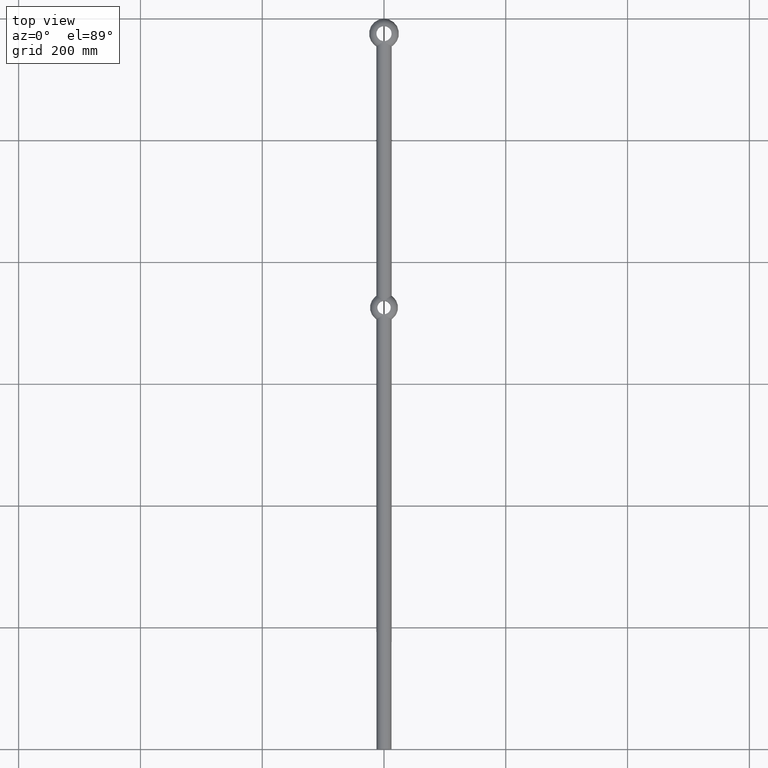
[diagram: clean part render]
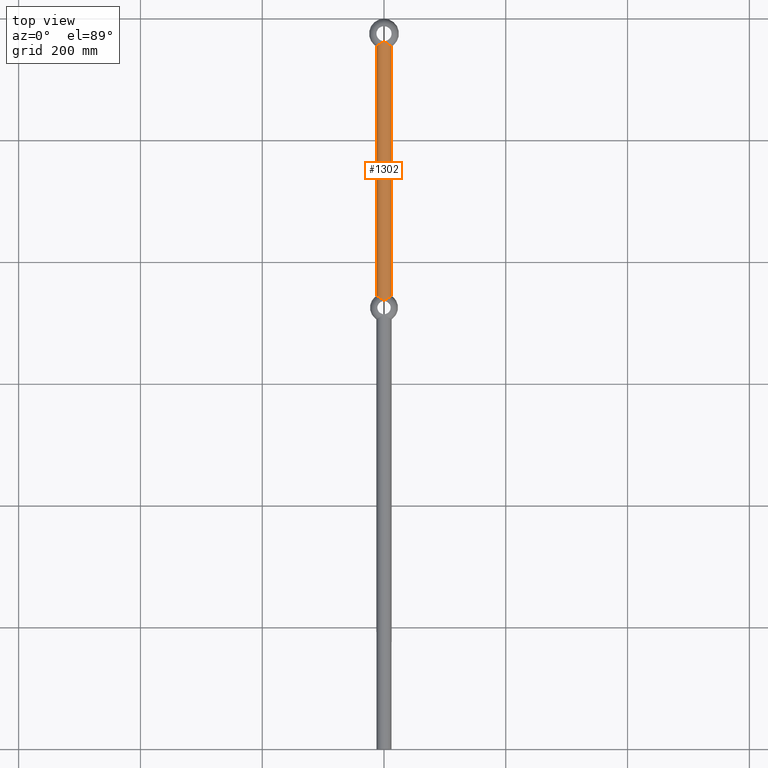
[diagram: same view with one face highlighted and labeled with its STEP entity id]
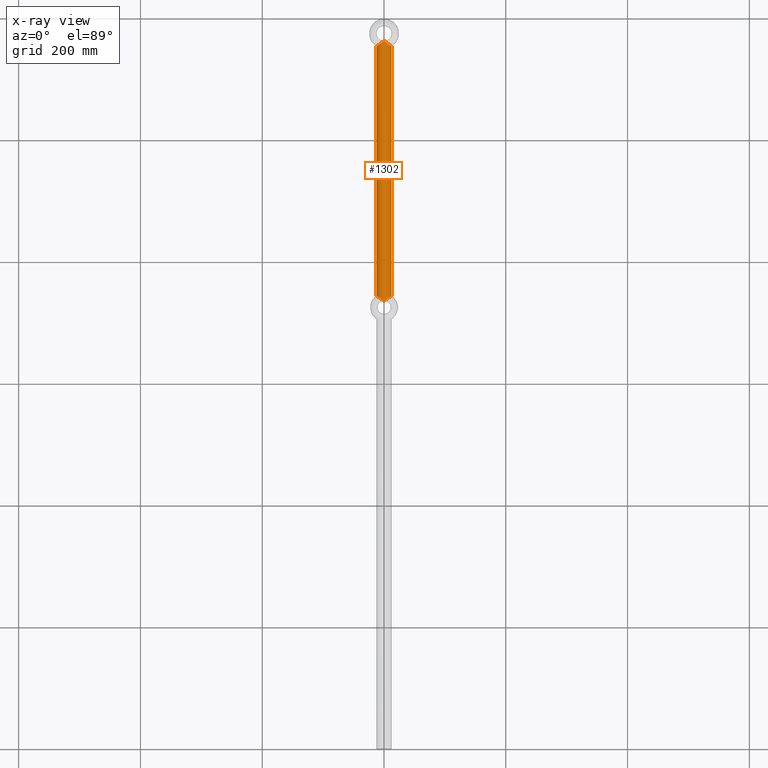
[diagram: x-ray of the same camera — body ghosted, the highlighted face saturated]
A machine part, top view. The second image highlights one B-rep face of the part: STEP entity #1302.
The next image is the same camera in x-ray: the body ghosted, the highlighted face saturated — about 0% of this face is hidden behind the body in this view.
In plain terms, the highlighted cylindrical surface (bore or boss wall) has radius 12.5 mm, axis along (-0, -1, -0).
Its self-contained STEP definition (entity closure, byte-faithful):
#5 = CARTESIAN_POINT ( 'NONE',  ( -12.47995561942790665, 744.7958670994731847, 0.8410071849056679483 ) ) ;
#42 = CARTESIAN_POINT ( 'NONE',  ( 0.8024486252889830862, 736.9064128386888797, 12.47560074127705043 ) ) ;
#81 = CARTESIAN_POINT ( 'NONE',  ( 0.4294464641169787877, 736.6433420418944706, 12.49303151539081291 ) ) ;
#124 = CARTESIAN_POINT ( 'NONE',  ( 9.741812696498756807, 1156.058906779740255, 7.844166483774707821 ) ) ;
#205 = CARTESIAN_POINT ( 'NONE',  ( 12.37172086303674234, 1154.501728961491835, 1.843034531111580776 ) ) ;
#241 = CARTESIAN_POINT ( 'NONE',  ( -4.731142428018757506, 1159.431869780404668, -11.57623707261711665 ) ) ;
#249 = CARTESIAN_POINT ( 'NONE',  ( -2.557229577531917819, 738.3473711947698348, 12.24081682425396700 ) ) ;
#264 = CARTESIAN_POINT ( 'NONE',  ( 4.993155549150756656, 740.1849250338199226, -11.46589208027404716 ) ) ;
#273 = CARTESIAN_POINT ( 'NONE',  ( 6.708808101363580967, 741.3585746226846140, 10.55452179782514754 ) ) ;
#281 = CARTESIAN_POINT ( 'NONE',  ( 11.53373901309380045, 1154.985065385755433, -4.839256075637949905 ) ) ;
#283 = CARTESIAN_POINT ( 'NONE',  ( 8.880463941004892854E-15, 1163.000000000000000, -12.49999999999999645 ) ) ;
#317 = CARTESIAN_POINT ( 'NONE',  ( 9.492293304708098844, 1156.211287078291207, -8.178129405757681880 ) ) ;
#319 = CARTESIAN_POINT ( 'NONE',  ( -9.605050525384177362, 1156.143178478085701, -8.010458309899709306 ) ) ;
#341 = CARTESIAN_POINT ( 'NONE',  ( 0.2257803073741623812, 736.5392413335755464, -12.49837541714896183 ) ) ;
#360 = CARTESIAN_POINT ( 'NONE',  ( -12.27872222346882758, 1154.554790811850580, 2.384085475157659229 ) ) ;
#429 = CARTESIAN_POINT ( 'NONE',  ( 6.019542393650459289, 1158.502195063073714, -10.96212501040120557 ) ) ;
#480 = CARTESIAN_POINT ( 'NONE',  ( -1.507698863636163011, 737.4847928416778586, 12.41378416404361040 ) ) ;
#554 = CARTESIAN_POINT ( 'NONE',  ( -9.432808527848948188, 1156.249959991580909, 8.212592780755011646 ) ) ;
#727 = CARTESIAN_POINT ( 'NONE',  ( -11.19026318910806950, 744.0824925467593403, 5.588062444339297663 ) ) ;
#745 = CARTESIAN_POINT ( 'NONE',  ( 12.37387588079094769, 744.7381646224420138, 1.827907482643321924 ) ) ;
#746 = B_SPLINE_CURVE_WITH_KNOTS ( 'NONE', 3,
 ( #2854, #2813, #1020, #2007, #7209, #1927, #3718, #5546, #8109, #8988, #4680, #3642, #9876, #4538, #5378, #6394, #7253, #9034, #10681, #10762, #124, #9913, #8065, #5464, #8194, #10851, #6434, #4642, #205, #6283, #1970, #986, #10806, #1882, #1060, #1104, #281, #8153, #1147, #7297, #7343, #317, #6592, #10890, #5705, #429, #6556, #10960, #8227, #8264, #10024, #8298, #2974, #4755, #8370, #11040, #2086, #4716, #2203, #3084 ),
 .UNSPECIFIED., .F., .F.,
 ( 4, 2, 2, 2, 2, 2, 2, 2, 2, 2, 2, 2, 2, 2, 2, 2, 2, 2, 2, 2, 2, 2, 2, 2, 2, 2, 2, 2, 2, 4 ),
 ( 0.03202140945159761415, 0.03235271011112006434, 0.03268401077064251453, 0.03334661208968740798, 0.03467181472777720180, 0.03732222000395638700, 0.03997262528013557220, 0.04129782791822517174, 0.04262303055631476434, 0.04394823319440435694, 0.04527343583249394260, 0.04792384110867289881, 0.04924904374676238039, 0.05057424638485185503, 0.05189944902294132967, 0.05322465166103081124, 0.05587505693720977440, 0.05720025957529924904, 0.05852546221338872368, 0.05985066485147820525, 0.06117586748956767295, 0.06382627276574662223, 0.06647667804192558538, 0.06780188068001490043, 0.06912708331810421547, 0.07177748859428284556, 0.07310269123237236877, 0.07376529255141732466, 0.07409659321093980955, 0.07442789387046228056 ),
 .UNSPECIFIED. ) ;
#757 = CARTESIAN_POINT ( 'NONE',  ( -0.5205917527434354986, 736.7045280614040621, -12.48949458828022507 ) ) ;
#778 = CARTESIAN_POINT ( 'NONE',  ( 10.27802545708300030, 743.5611275148163486, -7.127143769692401598 ) ) ;
#792 = CARTESIAN_POINT ( 'NONE',  ( -2.534917174997514344, 738.3294372169571034, -12.24535942220528106 ) ) ;
#808 = CARTESIAN_POINT ( 'NONE',  ( 7.040402423110196928, 741.5755814852482217, -10.33659000288436225 ) ) ;
#861 = CARTESIAN_POINT ( 'NONE',  ( -3.928113844949173483, 739.4087640740513052, -11.87248725931876869 ) ) ;
#880 = ORIENTED_EDGE ( 'NONE', *, *, #8688, .F. ) ;
#986 = CARTESIAN_POINT ( 'NONE',  ( 12.50150172246010172, 1154.427838724629510, -0.8991106012709723094 ) ) ;
#1020 = CARTESIAN_POINT ( 'NONE',  ( 0.2272175940879887224, 1162.959931753192450, 12.49834770302886255 ) ) ;
#1060 = CARTESIAN_POINT ( 'NONE',  ( 11.98712544553462678, 1154.722144331914251, -3.572331446427152279 ) ) ;
#1104 = CARTESIAN_POINT ( 'NONE',  ( 11.69904066700985545, 1154.888894740239948, -4.425514194053121741 ) ) ;
#1105 = CARTESIAN_POINT ( 'NONE',  ( -11.03761186933793681, 1155.276672321272599, -5.883080856773882594 ) ) ;
#1110 = EDGE_CURVE ( 'NONE', #1249, #4558, #6693, .T. ) ;
#1133 = CARTESIAN_POINT ( 'NONE',  ( 0.4293258606162899671, 736.6432109792388019, -12.49303982706361360 ) ) ;
#1147 = CARTESIAN_POINT ( 'NONE',  ( 10.95746071849889880, 1155.324165713179127, -6.031321562881649889 ) ) ;
#1148 = CARTESIAN_POINT ( 'NONE',  ( -0.4386104404978987681, 1162.850176502676504, -12.49272898594789361 ) ) ;
#1171 = CARTESIAN_POINT ( 'NONE',  ( 1.847716406156441504, 737.7700115897478099, -12.36770480460317323 ) ) ;
#1184 = CARTESIAN_POINT ( 'NONE',  ( -10.60158830114425044, 1155.536555519288413, -6.636704124678935557 ) ) ;
#1249 = VERTEX_POINT ( 'NONE', #10298 ) ;
#1270 = CARTESIAN_POINT ( 'NONE',  ( -0.9792312810445380489, 737.0512473125231736, 12.46284094345833005 ) ) ;
#1298 = CARTESIAN_POINT ( 'NONE',  ( -7.958576027326191848, 1157.189319294726829, 9.647591643355928781 ) ) ;
#1302 = ADVANCED_FACE ( 'NONE', ( #11238, #4207 ), #9287, .T. ) ;
#1416 = CARTESIAN_POINT ( 'NONE',  ( -5.657678900261871036, 1158.753665892238587, 11.17355872449560295 ) ) ;
#1453 = CARTESIAN_POINT ( 'NONE',  ( -1.849015386980135123, 1161.714107154593876, 12.36748556885441808 ) ) ;
#1492 = CARTESIAN_POINT ( 'NONE',  ( 0.000000000000000000, 1200.000999999999976, 0.000000000000000000 ) ) ;
#1513 = ORIENTED_EDGE ( 'NONE', *, *, #1110, .F. ) ;
#1529 = CARTESIAN_POINT ( 'NONE',  ( 9.762441973810437545, 743.2595562501493305, 7.818480496469507379 ) ) ;
#1586 = CARTESIAN_POINT ( 'NONE',  ( -4.966823643387684228, 740.1661572749329707, -11.47714444666488198 ) ) ;
#1613 = CARTESIAN_POINT ( 'NONE',  ( -10.30210195780365190, 743.5750803607530770, 7.092272761083358468 ) ) ;
#1632 = CARTESIAN_POINT ( 'NONE',  ( 12.40302239525808048, 744.7543070319915159, -1.796985188333605432 ) ) ;
#1648 = CARTESIAN_POINT ( 'NONE',  ( -12.31331935275635914, 744.7051978848386398, 2.199235538328587314 ) ) ;
#1670 = CARTESIAN_POINT ( 'NONE',  ( 11.69642469442950272, 744.3656566183233281, 4.432438193572549423 ) ) ;
#1687 = CARTESIAN_POINT ( 'NONE',  ( -7.011332891259194788, 741.5615610124851855, -10.37816118853220360 ) ) ;
#1707 = CARTESIAN_POINT ( 'NONE',  ( 6.708284712162662089, 741.3582090284385231, -10.55476213181084866 ) ) ;
#1722 = CARTESIAN_POINT ( 'NONE',  ( -9.451729900293774023, 743.0755440827800840, -8.191018424397519482 ) ) ;
#1744 = CARTESIAN_POINT ( 'NONE',  ( 11.52996870935835538, 744.2730817818186324, 4.848021846056022710 ) ) ;
#1882 = CARTESIAN_POINT ( 'NONE',  ( 12.11003898833786252, 1154.651493940571527, -3.130938498078900789 ) ) ;
#1927 = CARTESIAN_POINT ( 'NONE',  ( 0.8044365197665725997, 1162.588885622717953, 12.47547712260048236 ) ) ;
#1970 = CARTESIAN_POINT ( 'NONE',  ( 12.49922357586756227, 1154.429133912322413, 0.4805166989544158440 ) ) ;
#2000 = CARTESIAN_POINT ( 'NONE',  ( -0.1152547960527744580, 736.4999999999997726, 12.49999999999999467 ) ) ;
#2007 = CARTESIAN_POINT ( 'NONE',  ( 0.4303530062953792035, 1162.855194788577819, 12.49300281881191488 ) ) ;
#2049 = CARTESIAN_POINT ( 'NONE',  ( -2.955067884476879847, 1160.797348275686318, -12.16722525263383403 ) ) ;
#2073 = CARTESIAN_POINT ( 'NONE',  ( 0.000000000000000000, 736.4999999999998863, -12.50000000000005684 ) ) ;
#2086 = CARTESIAN_POINT ( 'NONE',  ( 0.4314125403391537716, 1162.854595730679193, -12.49297105151969589 ) ) ;
#2087 = CARTESIAN_POINT ( 'NONE',  ( -11.95267396681082239, 1154.742011316189291, 3.685177670128298555 ) ) ;
#2203 = CARTESIAN_POINT ( 'NONE',  ( 0.1157681101594828788, 1163.000000000000227, -12.49999999999999645 ) ) ;
#2206 = CARTESIAN_POINT ( 'NONE',  ( -0.8081723421149747955, 1162.585723609184242, 12.47520629286761107 ) ) ;
#2278 = CARTESIAN_POINT ( 'NONE',  ( -6.998879003327066251, 1157.827158300724705, 10.36456779923444671 ) ) ;
#2296 = CARTESIAN_POINT ( 'NONE',  ( 0.000000000000000000, 736.4999999999998863, 12.50000000000000000 ) ) ;
#2319 = CARTESIAN_POINT ( 'NONE',  ( -0.4382095520077913808, 1162.850364957426109, 12.49273816195305464 ) ) ;
#2363 = CARTESIAN_POINT ( 'NONE',  ( -8.568065794023176807, 1156.795233683623792, 9.110609499312998238 ) ) ;
#2391 = VERTEX_POINT ( 'NONE', #10110 ) ;
#2432 = CARTESIAN_POINT ( 'NONE',  ( 10.97600856660879032, 743.9621490416632241, 6.045759917513032100 ) ) ;
#2509 = CARTESIAN_POINT ( 'NONE',  ( -7.730603352725620603, 742.0217790529862896, 9.857324035085536451 ) ) ;
#2529 = CARTESIAN_POINT ( 'NONE',  ( 11.99125767563413447, 744.5287281522613512, -3.558244624495165098 ) ) ;
#2544 = CARTESIAN_POINT ( 'NONE',  ( -7.078995312502345705, 741.6056677681957581, 10.33291561493675204 ) ) ;
#2581 = CARTESIAN_POINT ( 'NONE',  ( -2.884261699599813600, 738.6073877942828858, -12.16802773064221199 ) ) ;
#2615 = CARTESIAN_POINT ( 'NONE',  ( -11.99119391736396167, 744.5288409168645103, -3.643253763956523006 ) ) ;
#2686 = CARTESIAN_POINT ( 'NONE',  ( 0.9785569969064356055, 737.0507051388514128, 12.46288831367186312 ) ) ;
#2724 = CARTESIAN_POINT ( 'NONE',  ( 4.998020626457629234, 740.1948541899330394, 11.48125499709244934 ) ) ;
#2813 = CARTESIAN_POINT ( 'NONE',  ( 0.1155599342855573308, 1162.999999999999773, 12.49999999999999645 ) ) ;
#2854 = CARTESIAN_POINT ( 'NONE',  ( 0.000000000000000000, 1163.000000000000000, 12.50000000000000000 ) ) ;
#2898 = CARTESIAN_POINT ( 'NONE',  ( -11.77563964931360196, 1154.843537278405165, -4.284502934002159868 ) ) ;
#2935 = CARTESIAN_POINT ( 'NONE',  ( -9.045410078020196920, 1156.493013897204946, -8.629818932758691830 ) ) ;
#2974 = CARTESIAN_POINT ( 'NONE',  ( 1.506039918336706140, 1162.006465950848906, -12.41391941290054923 ) ) ;
#3084 = CARTESIAN_POINT ( 'NONE',  ( 8.880463941004892854E-15, 1163.000000000000000, -12.49999999999999645 ) ) ;
#3166 = CARTESIAN_POINT ( 'NONE',  ( -0.1178529286420554600, 1163.000000000000000, 12.49999999999999467 ) ) ;
#3204 = CARTESIAN_POINT ( 'NONE',  ( 0.000000000000000000, 1163.000000000000000, 12.50000000000000000 ) ) ;
#3330 = CARTESIAN_POINT ( 'NONE',  ( -0.8023543324032392787, 736.9063383088054024, 12.47560670440293862 ) ) ;
#3368 = CARTESIAN_POINT ( 'NONE',  ( -10.23772948521794390, 743.5377421857227773, -7.184772581742488562 ) ) ;
#3406 = CARTESIAN_POINT ( 'NONE',  ( -0.7966968753646839208, 736.9019606752075333, -12.47594635543159036 ) ) ;
#3443 = CARTESIAN_POINT ( 'NONE',  ( -5.713693799777669113, 740.6934330686926842, 11.14607656990637530 ) ) ;
#3478 = CARTESIAN_POINT ( 'NONE',  ( 0.000000000000000000, 736.4999999999998863, -12.50000000000005684 ) ) ;
#3515 = CARTESIAN_POINT ( 'NONE',  ( -12.52430715453253995, 744.8199161523782550, -0.06328527934189859261 ) ) ;
#3595 = CARTESIAN_POINT ( 'NONE',  ( 2.904822146621599099, 738.6302154032530325, 12.17863896772043475 ) ) ;
#3635 = CARTESIAN_POINT ( 'NONE',  ( 0.2269259744705618420, 736.5397575061633688, 12.49835050365452460 ) ) ;
#3642 = CARTESIAN_POINT ( 'NONE',  ( 4.983886557735218048, 1159.239508696245366, 11.48713772720912552 ) ) ;
#3718 = CARTESIAN_POINT ( 'NONE',  ( 0.9806514467642942767, 1162.442932201474378, 12.46272386010823396 ) ) ;
#3750 = CARTESIAN_POINT ( 'NONE',  ( 0.1150500946764529825, 736.5000000000000000, -12.49999999999999467 ) ) ;
#3765 = EDGE_CURVE ( 'NONE', #5993, #2391, #8034, .T. ) ;
#3807 = CARTESIAN_POINT ( 'NONE',  ( -12.32729401055246043, 1154.527042829828133, -2.119211869401065762 ) ) ;
#3847 = CARTESIAN_POINT ( 'NONE',  ( -11.23901431182061472, 1155.157887937828036, -5.488872464740022217 ) ) ;
#3890 = CARTESIAN_POINT ( 'NONE',  ( -5.084238458179984654, 1159.172088766700881, -11.42596528336317796 ) ) ;
#3924 = CARTESIAN_POINT ( 'NONE',  ( -0.2322228266742295266, 1162.958064276291680, -12.49826904789730797 ) ) ;
#3999 = CARTESIAN_POINT ( 'NONE',  ( -1.505383124623764335, 1162.006988979432208, 12.41395216879775987 ) ) ;
#4207 = FACE_OUTER_BOUND ( 'NONE', #7166, .T. ) ;
#4243 = CARTESIAN_POINT ( 'NONE',  ( 9.487408410985178620, 743.0967800360050433, 8.149611670720185330 ) ) ;
#4333 = CARTESIAN_POINT ( 'NONE',  ( -3.967691627125096598, 739.4383764192382387, 11.85945928234170488 ) ) ;
#4374 = CARTESIAN_POINT ( 'NONE',  ( -0.4267519903334944242, 736.6417396935172519, -12.49311887128995480 ) ) ;
#4414 = CARTESIAN_POINT ( 'NONE',  ( -3.580481630270121229, 739.1466466289529080, -11.98165329579997440 ) ) ;
#4439 = CARTESIAN_POINT ( 'NONE',  ( 0.9778856320896045506, 737.0501696779550684, -12.46292955764252142 ) ) ;
#4538 = CARTESIAN_POINT ( 'NONE',  ( 6.688831187491286023, 1158.037940804464142, 10.56713661843258656 ) ) ;
#4558 = VERTEX_POINT ( 'NONE', #9489 ) ;
#4626 = CARTESIAN_POINT ( 'NONE',  ( 5.689455992794838046, 740.6719669829485611, -11.13680268481744839 ) ) ;
#4642 = CARTESIAN_POINT ( 'NONE',  ( 12.29698462245213442, 1154.544353004213917, 2.288484825779493637 ) ) ;
#4644 = CARTESIAN_POINT ( 'NONE',  ( -0.1180652352392002474, 1162.999999999999773, -12.49999999999999467 ) ) ;
#4680 = CARTESIAN_POINT ( 'NONE',  ( 3.599109681414296880, 1160.287170454613943, 11.99332597261472344 ) ) ;
#4682 = CARTESIAN_POINT ( 'NONE',  ( -0.5348246128124595211, 1162.784431943118079, -12.48891100220807182 ) ) ;
#4692 = CARTESIAN_POINT ( 'NONE',  ( -1.855625550484369279, 737.7765868987245312, 12.36663549448808119 ) ) ;
#4716 = CARTESIAN_POINT ( 'NONE',  ( 0.2271066059443089813, 1162.960041494766756, -12.49835449423673062 ) ) ;
#4717 = CARTESIAN_POINT ( 'NONE',  ( -12.50406632090590975, 1154.426380635217811, -0.3180851000085264113 ) ) ;
#4738 = CARTESIAN_POINT ( 'NONE',  ( 0.5249048309362850384, 736.7074280644153532, -12.48931737868615066 ) ) ;
#4755 = CARTESIAN_POINT ( 'NONE',  ( 0.9810513636973922091, 1162.442595665303088, -12.46268133581978077 ) ) ;
#4756 = CARTESIAN_POINT ( 'NONE',  ( -11.66123808881894242, 1154.910871177153922, 4.523546800152270286 ) ) ;
#4788 = CARTESIAN_POINT ( 'NONE',  ( -6.137559690911519539, 1158.419401062371890, -10.89684226942274137 ) ) ;
#4816 = CARTESIAN_POINT ( 'NONE',  ( 7.694352740720815653, 741.9957773712254721, 9.859450376050524767 ) ) ;
#5123 = CARTESIAN_POINT ( 'NONE',  ( -12.02668419085766516, 744.5483516310783898, 3.525159445673522907 ) ) ;
#5142 = CARTESIAN_POINT ( 'NONE',  ( 12.30010449984499488, 744.6979875084938385, 2.271244982894326636 ) ) ;
#5156 = CARTESIAN_POINT ( 'NONE',  ( -0.9718218901899546847, 737.0452660846010531, -12.46339646899031450 ) ) ;
#5173 = CARTESIAN_POINT ( 'NONE',  ( 11.17283985624537479, 744.0726634769299608, -5.622447391350710255 ) ) ;
#5188 = CARTESIAN_POINT ( 'NONE',  ( -9.723965963156887327, 743.2368508784564938, -7.866164758713469318 ) ) ;
#5210 = CARTESIAN_POINT ( 'NONE',  ( 8.011838589371540920, 742.1958265457650441, -9.603759344570846679 ) ) ;
#5224 = CARTESIAN_POINT ( 'NONE',  ( -7.659349239502534878, 741.9765881413984516, -9.912240180223395924 ) ) ;
#5261 = CARTESIAN_POINT ( 'NONE',  ( -11.70177155459693275, 744.3696278078956539, -4.483861992158157506 ) ) ;
#5378 = CARTESIAN_POINT ( 'NONE',  ( 7.023462997729173374, 1157.810521815760922, 10.34802684562284902 ) ) ;
#5391 = EDGE_CURVE ( 'NONE', #2391, #5993, #10772, .T. ) ;
#5459 = CARTESIAN_POINT ( 'NONE',  ( 7.044493015459355689, 741.5782380681754375, 10.33377684932208318 ) ) ;
#5464 = CARTESIAN_POINT ( 'NONE',  ( 11.51884205909189518, 1154.993762563404971, 4.874502180027026732 ) ) ;
#5510 = CARTESIAN_POINT ( 'NONE',  ( -1.887082837937891666, 1161.682039831933707, -12.36203330768485031 ) ) ;
#5546 = CARTESIAN_POINT ( 'NONE',  ( 1.507973894990702224, 1162.004850685245856, 12.41372900563865400 ) ) ;
#5548 = CARTESIAN_POINT ( 'NONE',  ( -5.786780477367034159, 1158.666305528784960, -11.08671885920360545 ) ) ;
#5588 = CARTESIAN_POINT ( 'NONE',  ( -12.35752091243438322, 1154.509828741360252, 1.936039934526269102 ) ) ;
#5609 = CARTESIAN_POINT ( 'NONE',  ( 3.586962840236200378, 739.1582429869609996, -11.99759133232272568 ) ) ;
#5624 = CARTESIAN_POINT ( 'NONE',  ( -7.823972314098685210, 1157.274220393925816, -9.784978344717188747 ) ) ;
#5660 = CARTESIAN_POINT ( 'NONE',  ( 8.621922785381407550, 742.5740993155377510, 9.059817268813041835 ) ) ;
#5667 = CARTESIAN_POINT ( 'NONE',  ( -9.187955990633698278, 1156.403473658320763, -8.477916854784218970 ) ) ;
#5698 = CARTESIAN_POINT ( 'NONE',  ( 8.010190013107976625, 742.1947695043996873, 9.604930890707498392 ) ) ;
#5705 = CARTESIAN_POINT ( 'NONE',  ( 7.030200089034870814, 1157.801239451877109, -10.36525871353962280 ) ) ;
#5868 = CARTESIAN_POINT ( 'NONE',  ( -10.47646156428927355, 1155.609722961693933, 6.871360244280821483 ) ) ;
#5944 = DIRECTION ( 'NONE',  ( 0.000000000000000000, 0.000000000000000000, -1.000000000000000000 ) ) ;
#5993 = VERTEX_POINT ( 'NONE', #7858 ) ;
#6020 = CARTESIAN_POINT ( 'NONE',  ( -4.621290474073876275, 739.9185094478680185, -11.62022833062250804 ) ) ;
#6041 = CARTESIAN_POINT ( 'NONE',  ( 12.47353922598679432, 744.7923837205754580, 0.9299834708704355357 ) ) ;
#6076 = CARTESIAN_POINT ( 'NONE',  ( 10.52145492150945572, 743.7016222653110162, -6.763175417644527343 ) ) ;
#6090 = CARTESIAN_POINT ( 'NONE',  ( -8.576342415715652479, 742.5453195762787573, -9.096121421353249303 ) ) ;
#6129 = CARTESIAN_POINT ( 'NONE',  ( -0.1144657218276762950, 736.5000000000003411, -12.49999999999999289 ) ) ;
#6203 = CARTESIAN_POINT ( 'NONE',  ( -2.910807654894295382, 738.6283565396634003, 12.16185000539523919 ) ) ;
#6242 = CARTESIAN_POINT ( 'NONE',  ( 0.5240236131630594540, 736.7068181230633854, 12.48935681553868271 ) ) ;
#6283 = CARTESIAN_POINT ( 'NONE',  ( 12.47284813409295445, 1154.444115077345032, 0.9403790829353242398 ) ) ;
#6394 = CARTESIAN_POINT ( 'NONE',  ( 7.672054198601651720, 1157.377281504085431, 9.876754348059931132 ) ) ;
#6395 = CARTESIAN_POINT ( 'NONE',  ( -10.36734483224013914, 1155.677415677447470, -6.996297554265355600 ) ) ;
#6420 = CARTESIAN_POINT ( 'NONE',  ( 1.502764422700490821, 737.4806926567125629, -12.41431403512467924 ) ) ;
#6434 = CARTESIAN_POINT ( 'NONE',  ( 12.10031704363516525, 1154.657079399229588, 3.167857485140323615 ) ) ;
#6459 = CARTESIAN_POINT ( 'NONE',  ( 6.032813801407701071, 740.9064026683831798, -10.95487312003604963 ) ) ;
#6477 = CARTESIAN_POINT ( 'NONE',  ( -9.869081475435400819, 1155.980725363173406, -7.683179626275416396 ) ) ;
#6519 = CARTESIAN_POINT ( 'NONE',  ( -8.523005811350056860, 1156.825048017430618, -9.144368270381264097 ) ) ;
#6556 = CARTESIAN_POINT ( 'NONE',  ( 5.677013985379767647, 1158.744385866947823, -11.14311442150376763 ) ) ;
#6558 = CARTESIAN_POINT ( 'NONE',  ( -7.166293615080628676, 1157.709358202063640, -10.27314350328915893 ) ) ;
#6592 = CARTESIAN_POINT ( 'NONE',  ( 8.921907190868754611, 1156.567002078106952, -8.794102517222636806 ) ) ;
#6594 = CARTESIAN_POINT ( 'NONE',  ( -7.644385637391337696, 1157.395564952847963, 9.898077651493002449 ) ) ;
#6693 = B_SPLINE_CURVE_WITH_KNOTS ( 'NONE', 3,
 ( #283, #4644, #3924, #1148, #4682, #10808, #10069, #8228, #5510, #2049, #10853, #241, #3890, #5548, #4788, #6558, #5624, #6519, #10961, #9219, #8196, #2935, #5667, #319, #6477, #6395, #1184, #1105, #3847, #2898, #9076, #3807, #10025, #9990, #4717, #9148, #10891, #5588, #360, #7383, #2087, #4756, #10929, #7608, #5868, #11114, #554, #10258, #2363, #1298, #6594, #2278, #6710, #1416, #8531, #7565, #8456, #1453, #3999, #10145, #2206, #9333, #2319, #7647, #3166, #3204 ),
 .UNSPECIFIED., .F., .F.,
 ( 4, 2, 2, 2, 2, 2, 2, 2, 2, 2, 2, 2, 2, 2, 2, 2, 2, 2, 2, 2, 2, 2, 2, 2, 2, 2, 2, 2, 2, 2, 2, 2, 4 ),
 ( 0.07442789387046228056, 0.07476576835288670231, 0.07510364283531112406, 0.07577939180016034226, 0.07713088972985877867, 0.07983388558925565148, 0.08118538351895428218, 0.08253688144865289900, 0.08523987730805049345, 0.08557775179047524827, 0.08591562627290001697, 0.08659137523774926293, 0.08794287316744751892, 0.08929437109714577492, 0.09064586902684403091, 0.09334886488624037637, 0.09470036281593856298, 0.09605186074563673571, 0.09740335867533492231, 0.09875485660503309504, 0.1001063545347312678, 0.1014578524644294544, 0.1041608483238259664, 0.1055123462535243611, 0.1068638441832227282, 0.1082153421129211091, 0.1095668400426194899, 0.1122698359020162517, 0.1149728317614130135, 0.1163243296911111863, 0.1170000786559600575, 0.1173379531383842989, 0.1176758276208085541 ),
 .UNSPECIFIED. ) ;
#6710 = CARTESIAN_POINT ( 'NONE',  ( -6.666030015859154112, 1158.053581302506473, 10.58139783321283467 ) ) ;
#6814 = CARTESIAN_POINT ( 'NONE',  ( 8.917826508626125914, 742.7544386029487669, 8.769233666770206881 ) ) ;
#6928 = CARTESIAN_POINT ( 'NONE',  ( 12.50113075234810367, 744.8073484164233378, -0.8992179644017582740 ) ) ;
#6945 = CARTESIAN_POINT ( 'NONE',  ( -8.957750552989468318, 742.7819465858897274, 8.757155380616735485 ) ) ;
#6959 = CARTESIAN_POINT ( 'NONE',  ( 9.508923423140869247, 743.1112902759591634, -8.158818405509991933 ) ) ;
#7012 = CARTESIAN_POINT ( 'NONE',  ( -9.021397567641121995, 742.8165628109319414, -8.654991690394076898 ) ) ;
#7166 = EDGE_LOOP ( 'NONE', ( #880, #1513 ) ) ;
#7202 = CARTESIAN_POINT ( 'NONE',  ( 5.689121858785621377, 740.6764842005773062, 11.15831701300122525 ) ) ;
#7204 = CARTESIAN_POINT ( 'NONE',  ( 0.000000000000000000, 736.4999999999998863, 12.50000000000000000 ) ) ;
#7209 = CARTESIAN_POINT ( 'NONE',  ( 0.5255707570842803600, 1162.790724284701810, 12.48929290500520572 ) ) ;
#7253 = CARTESIAN_POINT ( 'NONE',  ( 7.987563760112087685, 1157.170381675558247, 9.623715805197731399 ) ) ;
#7297 = CARTESIAN_POINT ( 'NONE',  ( 10.50726642196815419, 1155.593187272966361, -6.785288315916147894 ) ) ;
#7343 = CARTESIAN_POINT ( 'NONE',  ( 10.26324944010513462, 1155.740359239684949, -7.148396262111019084 ) ) ;
#7383 = CARTESIAN_POINT ( 'NONE',  ( -12.07644254470224965, 1154.670800665223624, 3.257363728303996897 ) ) ;
#7565 = CARTESIAN_POINT ( 'NONE',  ( -3.588596771816392916, 1160.295382405574628, 11.99643403076182224 ) ) ;
#7608 = CARTESIAN_POINT ( 'NONE',  ( -10.92640082485006836, 1155.341843363705493, 6.135674234015328743 ) ) ;
#7647 = CARTESIAN_POINT ( 'NONE',  ( -0.2330091542004222582, 1162.957674296197411, 12.49824952257906396 ) ) ;
#7685 = AXIS2_PLACEMENT_3D ( 'NONE', #1492, #11242, #5944 ) ;
#7714 = CARTESIAN_POINT ( 'NONE',  ( 10.53176990519230216, 743.7095660492955176, 6.787301741255182819 ) ) ;
#7772 = CARTESIAN_POINT ( 'NONE',  ( -8.873585891561996064, 742.7269613248464566, -8.806392426452314126 ) ) ;
#7801 = CARTESIAN_POINT ( 'NONE',  ( -9.537257458345356653, 743.1281023430477717, 8.125593568446751291 ) ) ;
#7821 = CARTESIAN_POINT ( 'NONE',  ( 12.11302948029521609, 744.5955869583895037, -3.118981706517356400 ) ) ;
#7858 = CARTESIAN_POINT ( 'NONE',  ( 0.000000000000000000, 736.4999999999998863, 12.50000000000000000 ) ) ;
#7873 = CARTESIAN_POINT ( 'NONE',  ( -1.839744724970197698, 737.7634367416176246, -12.36891150465687161 ) ) ;
#7909 = CARTESIAN_POINT ( 'NONE',  ( -11.13908012729985586, 744.0536178888755785, -5.689245370676767166 ) ) ;
#8034 = B_SPLINE_CURVE_WITH_KNOTS ( 'NONE', 3,
 ( #2296, #10546, #3635, #81, #6242, #42, #2686, #8860, #10710, #3595, #9758, #2724, #7202, #273, #5459, #4816, #5698, #5660, #6814, #4243, #1529, #7714, #2432, #1744, #1670, #8804, #9556, #5142, #745, #6041, #11341, #6928, #1632, #7821, #2529, #10467, #9600, #5173, #11380, #6076, #778, #6959, #8732, #5210, #11412, #808, #1707, #6459, #4626, #264, #10012, #5609, #8289, #1171, #6420, #4439, #9977, #4738, #1133, #341, #3750, #2073 ),
 .UNSPECIFIED., .F., .F.,
 ( 4, 2, 2, 2, 2, 2, 2, 2, 2, 2, 2, 2, 2, 2, 2, 2, 2, 2, 2, 2, 2, 2, 2, 2, 2, 2, 2, 2, 2, 2, 4 ),
 ( 0.03171331102423189524, 0.03205432306704504575, 0.03239533510985819625, 0.03307735919548430298, 0.03444140736673630132, 0.03716950370924031188, 0.03989760005174431551, 0.04126164822299639712, 0.04262569639424847873, 0.04398974456550056727, 0.04535379273675264888, 0.04808188907925681904, 0.04944593725050885902, 0.05080998542176090593, 0.05217403359301295285, 0.05353808176426499282, 0.05626617810676907971, 0.05763022627802112663, 0.05899427444927317354, 0.06035832262052522046, 0.06172237079177726737, 0.06445046713428134733, 0.06581451530553339424, 0.06717856347678544116, 0.06854261164803748807, 0.06990665981928952111, 0.07263475616179360106, 0.07399880433304564797, 0.07468082841867168531, 0.07502184046148477337, 0.07536285250429788918 ),
 .UNSPECIFIED. ) ;
#8065 = CARTESIAN_POINT ( 'NONE',  ( 10.96058793893269367, 1155.321578776164870, 6.074000952790014729 ) ) ;
#8109 = CARTESIAN_POINT ( 'NONE',  ( 1.855495108058503817, 1161.708631953261829, 12.36660774524312245 ) ) ;
#8153 = CARTESIAN_POINT ( 'NONE',  ( 11.16295390636755336, 1155.202699591719465, -5.642162269207972258 ) ) ;
#8194 = CARTESIAN_POINT ( 'NONE',  ( 11.68681926388091696, 1154.895994278300577, 4.457884807630694723 ) ) ;
#8196 = CARTESIAN_POINT ( 'NONE',  ( -8.826431280357793341, 1156.631592398144448, -8.851831190553674844 ) ) ;
#8227 = CARTESIAN_POINT ( 'NONE',  ( 4.631278769624017855, 1159.506167867670911, -11.61633782849416896 ) ) ;
#8228 = CARTESIAN_POINT ( 'NONE',  ( -1.533925974166493678, 1161.982836445629118, -12.41072675482137022 ) ) ;
#8264 = CARTESIAN_POINT ( 'NONE',  ( 3.584083435666979067, 1160.298760032041400, -11.99818887486261687 ) ) ;
#8289 = CARTESIAN_POINT ( 'NONE',  ( 2.888462460702502899, 738.6171177386943327, -12.18209738996684344 ) ) ;
#8298 = CARTESIAN_POINT ( 'NONE',  ( 1.850507464636586219, 1161.712853521843272, -12.36726335119259801 ) ) ;
#8370 = CARTESIAN_POINT ( 'NONE',  ( 0.8053489471878463313, 1162.588108957703525, -12.47541030883317248 ) ) ;
#8456 = CARTESIAN_POINT ( 'NONE',  ( -2.887150019502865206, 1160.852647537329403, 12.18230657771059811 ) ) ;
#8531 = CARTESIAN_POINT ( 'NONE',  ( -4.972565865800414819, 1159.247819138514842, 11.49199917139693206 ) ) ;
#8644 = CARTESIAN_POINT ( 'NONE',  ( -5.997262902019771857, 740.8822722708854371, -10.97436067959585415 ) ) ;
#8676 = CARTESIAN_POINT ( 'NONE',  ( -10.98458188433143512, 743.9662898627519780, 5.981569079259029920 ) ) ;
#8688 = EDGE_CURVE ( 'NONE', #4558, #1249, #746, .T. ) ;
#8712 = CARTESIAN_POINT ( 'NONE',  ( -12.47078866228389415, 744.7908908633918372, -0.9678457310331910479 ) ) ;
#8732 = CARTESIAN_POINT ( 'NONE',  ( 8.939616349824074604, 742.7710277380824664, -8.776118962289498171 ) ) ;
#8780 = CARTESIAN_POINT ( 'NONE',  ( -12.29012725039015486, 744.6925437608549601, -2.325033237895687943 ) ) ;
#8804 = CARTESIAN_POINT ( 'NONE',  ( 11.98509732634133940, 744.5253381578306744, 3.579148090038542396 ) ) ;
#8860 = CARTESIAN_POINT ( 'NONE',  ( 1.505850845630381629, 737.4832548653612321, 12.41398601947527425 ) ) ;
#8953 = ORIENTED_EDGE ( 'NONE', *, *, #3765, .T. ) ;
#8988 = CARTESIAN_POINT ( 'NONE',  ( 2.903067834282062609, 1160.839639275145373, 12.17889954111213768 ) ) ;
#9034 = CARTESIAN_POINT ( 'NONE',  ( 8.599226076597446422, 1156.775300770776084, 9.081321027506689347 ) ) ;
#9076 = CARTESIAN_POINT ( 'NONE',  ( -12.05026074129290947, 1154.685676400447619, -3.442987416024987368 ) ) ;
#9148 = CARTESIAN_POINT ( 'NONE',  ( -12.49453377070762272, 1154.431800246106604, 0.5826478705938226144 ) ) ;
#9219 = CARTESIAN_POINT ( 'NONE',  ( -8.753112312620904945, 1156.678154290829525, -8.924366636047899703 ) ) ;
#9287 = CYLINDRICAL_SURFACE ( 'NONE', #7685, 12.49999999999999645 ) ;
#9333 = CARTESIAN_POINT ( 'NONE',  ( -0.5322783286395899038, 1162.786087943438815, 12.48900149839455942 ) ) ;
#9489 = CARTESIAN_POINT ( 'NONE',  ( 0.000000000000000000, 1163.000000000000000, 12.50000000000000000 ) ) ;
#9535 = CARTESIAN_POINT ( 'NONE',  ( -12.38591901966848852, 744.7447223416309043, 1.745163426779212879 ) ) ;
#9556 = CARTESIAN_POINT ( 'NONE',  ( 12.10571611988720697, 744.5915735568736409, 3.146865377503871297 ) ) ;
#9575 = CARTESIAN_POINT ( 'NONE',  ( -10.54098119787318666, 743.7128508539027507, 6.732601518700918497 ) ) ;
#9600 = CARTESIAN_POINT ( 'NONE',  ( 11.54109933169703517, 744.2792921800293016, -4.821544497120583195 ) ) ;
#9614 = CARTESIAN_POINT ( 'NONE',  ( -5.018645278164298063, 740.2095985373130134, 11.47260235700155206 ) ) ;
#9685 = CARTESIAN_POINT ( 'NONE',  ( -10.92934158052236704, 743.9349328321566190, -6.081890695982773209 ) ) ;
#9758 = CARTESIAN_POINT ( 'NONE',  ( 3.606119857788971927, 739.1726442277778233, 11.99146888675512379 ) ) ;
#9876 = CARTESIAN_POINT ( 'NONE',  ( 5.672003747548228780, 1158.743356573267647, 11.16681375134800192 ) ) ;
#9913 = CARTESIAN_POINT ( 'NONE',  ( 10.51375767974348818, 1155.587270899018904, 6.815155846126373262 ) ) ;
#9977 = CARTESIAN_POINT ( 'NONE',  ( 0.8023481006176591546, 736.9063845274173445, -12.47559746841023021 ) ) ;
#9990 = CARTESIAN_POINT ( 'NONE',  ( -12.48455540648132178, 1154.437460161109357, -0.7679983414473733339 ) ) ;
#10012 = CARTESIAN_POINT ( 'NONE',  ( 4.639904665511732418, 739.9320158863783945, -11.61296300448888807 ) ) ;
#10024 = CARTESIAN_POINT ( 'NONE',  ( 2.888717877880893958, 1160.851377575951119, -12.18193875044971719 ) ) ;
#10025 = CARTESIAN_POINT ( 'NONE',  ( -12.39658648139181807, 1154.487552828483558, -1.666909943380745718 ) ) ;
#10069 = CARTESIAN_POINT ( 'NONE',  ( -0.9974277686773985740, 1162.429203448491762, -12.46143670350801003 ) ) ;
#10110 = CARTESIAN_POINT ( 'NONE',  ( 0.000000000000000000, 736.4999999999998863, -12.50000000000005684 ) ) ;
#10145 = CARTESIAN_POINT ( 'NONE',  ( -0.9828786587991489299, 1162.441088905638480, 12.46252567669781364 ) ) ;
#10258 = CARTESIAN_POINT ( 'NONE',  ( -8.863373183408530309, 1156.607391402098528, 8.824124473125007029 ) ) ;
#10298 = CARTESIAN_POINT ( 'NONE',  ( 8.880463941004892854E-15, 1163.000000000000000, -12.49999999999999645 ) ) ;
#10364 = ORIENTED_EDGE ( 'NONE', *, *, #5391, .T. ) ;
#10410 = CARTESIAN_POINT ( 'NONE',  ( -0.2254612107034514035, 736.5392371769590909, -12.49837203942589348 ) ) ;
#10467 = CARTESIAN_POINT ( 'NONE',  ( 11.70524415660635853, 744.3705519235868451, -4.408925570412364436 ) ) ;
#10482 = CARTESIAN_POINT ( 'NONE',  ( -3.615945241366485874, 739.1736700506668285, 11.97114600900693304 ) ) ;
#10509 = CARTESIAN_POINT ( 'NONE',  ( -1.495158613434498296, 737.4743178145780576, -12.41520269825038092 ) ) ;
#10546 = CARTESIAN_POINT ( 'NONE',  ( 0.1158431973002548576, 736.5000000000002274, 12.49999999999999645 ) ) ;
#10550 = CARTESIAN_POINT ( 'NONE',  ( -8.425356345132824387, 742.4523402185528766, -9.236077574800031442 ) ) ;
#10681 = CARTESIAN_POINT ( 'NONE',  ( 8.895387065870254517, 1156.587117344778335, 8.791976033141409630 ) ) ;
#10710 = CARTESIAN_POINT ( 'NONE',  ( 1.853245470470661793, 737.7746188851350553, 12.36698390589133645 ) ) ;
#10712 = CARTESIAN_POINT ( 'NONE',  ( -0.5239394391769280901, 736.7067612506990599, 12.48936032162946042 ) ) ;
#10754 = CARTESIAN_POINT ( 'NONE',  ( -0.4284802338205781491, 736.6427146451050021, 12.49306675999534200 ) ) ;
#10762 = CARTESIAN_POINT ( 'NONE',  ( 9.466028892113575566, 1156.229308603582012, 8.174414390808417252 ) ) ;
#10772 = B_SPLINE_CURVE_WITH_KNOTS ( 'NONE', 3,
 ( #3478, #6129, #10410, #4374, #757, #3406, #5156, #10509, #7873, #792, #2581, #4414, #861, #6020, #1586, #11428, #8644, #1687, #5224, #10550, #6090, #7772, #7012, #1722, #5188, #3368, #11394, #9685, #7909, #5261, #2615, #8780, #11357, #8712, #3515, #5, #9535, #1648, #5123, #11321, #727, #8676, #9575, #1613, #7801, #6945, #2509, #2544, #3443, #9614, #4333, #10482, #6203, #249, #4692, #480, #1270, #3330, #10712, #10754, #10800, #2000, #7204 ),
 .UNSPECIFIED., .F., .F.,
 ( 4, 2, 2, 2, 2, 2, 2, 2, 2, 2, 2, 2, 2, 2, 2, 2, 2, 1, 2, 2, 2, 2, 2, 2, 2, 2, 2, 2, 2, 2, 2, 4 ),
 ( 0.07536285250429788918, 0.07570213244789358864, 0.07604141239148930198, 0.07671997227868070091, 0.07807709205306351263, 0.07943421182744632436, 0.08079133160182913609, 0.08214845137621194782, 0.08350557115059475954, 0.08621981069936038300, 0.08689837058655178192, 0.08757693047374318085, 0.08893405024812599258, 0.09029117002250879043, 0.09164828979689160215, 0.09436252934565719785, 0.09571964912003999570, 0.09707676889442277968, 0.09843388866880559140, 0.09979100844318838925, 0.1025052479919539433, 0.1038623677663367550, 0.1052194875407195807, 0.1079337270894850931, 0.1106479666382506194, 0.1133622061870161457, 0.1147193259613988048, 0.1160764457357814916, 0.1174335655101641507, 0.1181121253973554802, 0.1184514053409512491, 0.1187906852845470040 ),
 .UNSPECIFIED. ) ;
#10800 = CARTESIAN_POINT ( 'NONE',  ( -0.2254499429934082588, 736.5391373536057245, 12.49837928307824697 ) ) ;
#10806 = CARTESIAN_POINT ( 'NONE',  ( 12.40269982583943431, 1154.483786807272736, -1.801754073503190279 ) ) ;
#10808 = CARTESIAN_POINT ( 'NONE',  ( -0.8180466279172573518, 1162.578150357125878, -12.47463591712111963 ) ) ;
#10851 = CARTESIAN_POINT ( 'NONE',  ( 11.97838327375662004, 1154.727180785198698, 3.601779506259406904 ) ) ;
#10853 = CARTESIAN_POINT ( 'NONE',  ( -3.668602420989957924, 1160.232674029887448, -11.97343935631042555 ) ) ;
#10890 = CARTESIAN_POINT ( 'NONE',  ( 7.682971709144006844, 1157.366998216812817, -9.894878105484171016 ) ) ;
#10891 = CARTESIAN_POINT ( 'NONE',  ( -12.46549311362914025, 1154.448297306623317, 1.033467543466256355 ) ) ;
#10929 = CARTESIAN_POINT ( 'NONE',  ( -11.49286357148762505, 1155.008933297012391, 4.935561796795132850 ) ) ;
#10960 = CARTESIAN_POINT ( 'NONE',  ( 4.982248092293158237, 1159.246797943813590, -11.47060115023463034 ) ) ;
#10961 = CARTESIAN_POINT ( 'NONE',  ( -8.600103676929908403, 1156.775705931232096, -9.071907834519553404 ) ) ;
#11040 = CARTESIAN_POINT ( 'NONE',  ( 0.5272837499294743546, 1162.789541901413031, -12.48921871744504664 ) ) ;
#11073 = EDGE_LOOP ( 'NONE', ( #10364, #8953 ) ) ;
#11114 = CARTESIAN_POINT ( 'NONE',  ( -9.706860903986909150, 1156.080446802041024, 7.887161150840567458 ) ) ;
#11238 = FACE_OUTER_BOUND ( 'NONE', #11073, .T. ) ;
#11242 = DIRECTION ( 'NONE',  ( -0.000000000000000000, -1.000000000000000000, -0.000000000000000000 ) ) ;
#11321 = CARTESIAN_POINT ( 'NONE',  ( -11.74434402342666495, 744.3932178809238849, 4.371968887443351548 ) ) ;
#11341 = CARTESIAN_POINT ( 'NONE',  ( 12.49942005307675430, 744.8064197463754681, 0.4729842443932515406 ) ) ;
#11357 = CARTESIAN_POINT ( 'NONE',  ( -12.36733105471347649, 744.7346002485265899, -1.872543137432970184 ) ) ;
#11380 = CARTESIAN_POINT ( 'NONE',  ( 10.96871563999181909, 743.9572923721743791, -6.010726462266083203 ) ) ;
#11394 = CARTESIAN_POINT ( 'NONE',  ( -10.47926621782780465, 743.6773281472553663, -6.828241454247925724 ) ) ;
#11412 = CARTESIAN_POINT ( 'NONE',  ( 7.691495589409884204, 741.9939696806046641, -9.861706483421272651 ) ) ;
#11428 = CARTESIAN_POINT ( 'NONE',  ( -5.654305704140664801, 740.6476998430932781, -11.15450620862474196 ) ) ;